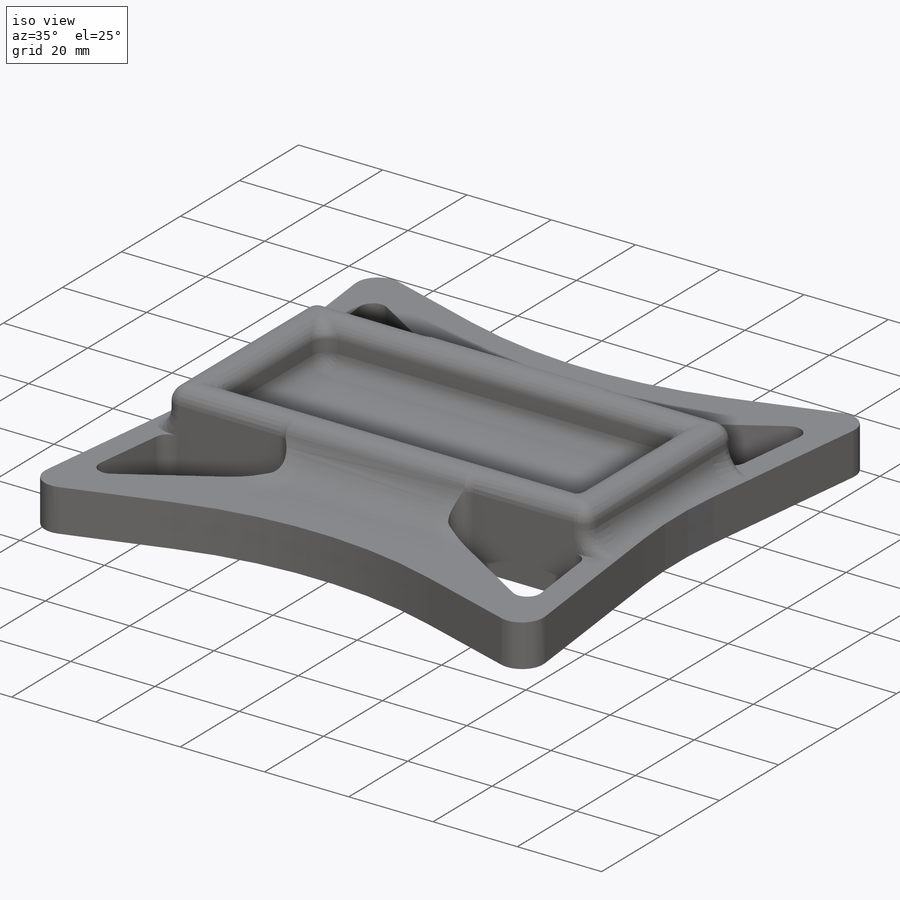
[diagram: iso view]
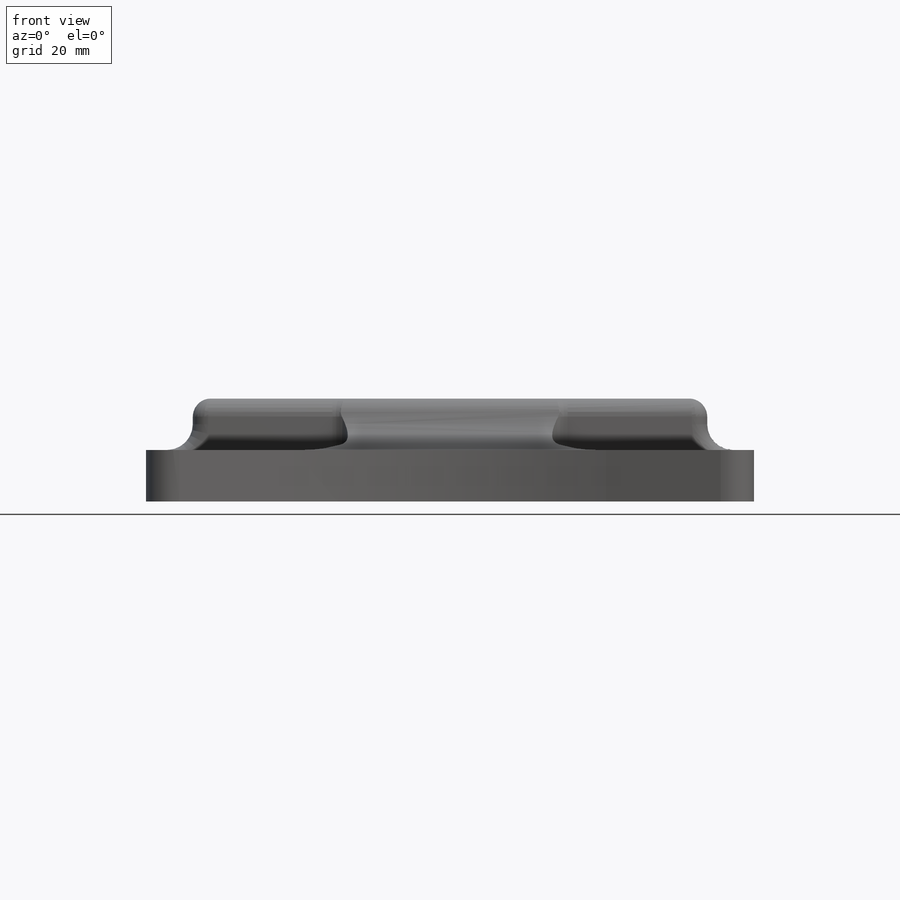
[diagram: front view]
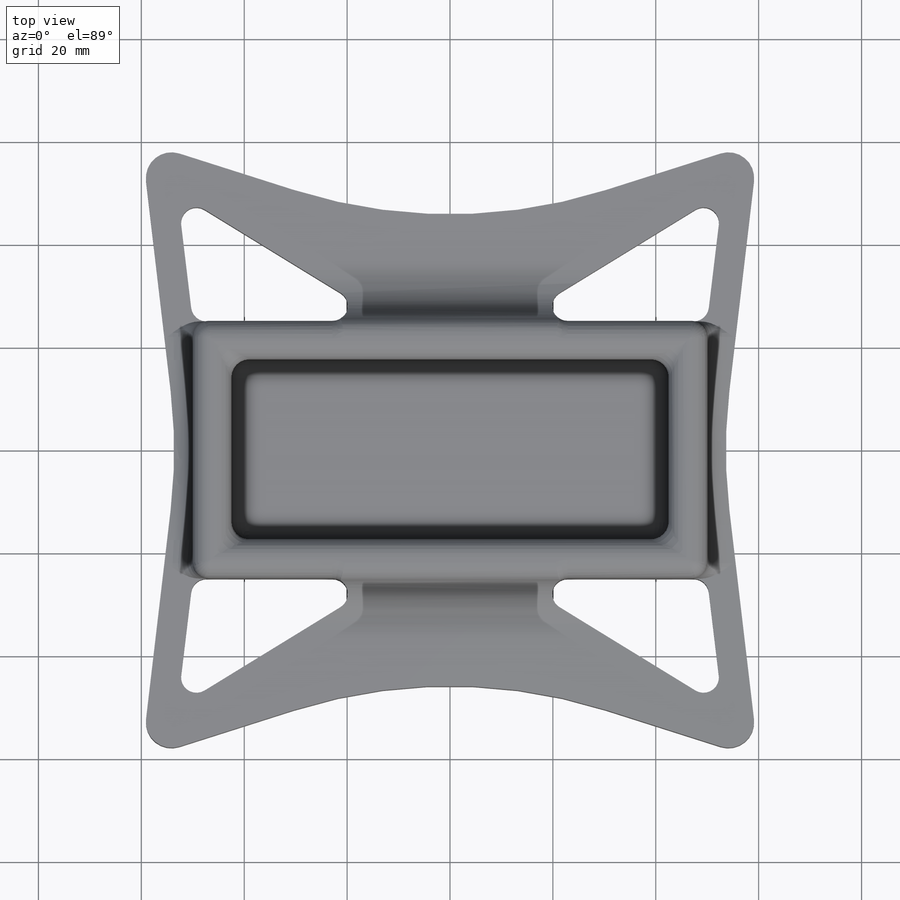
[diagram: top view]
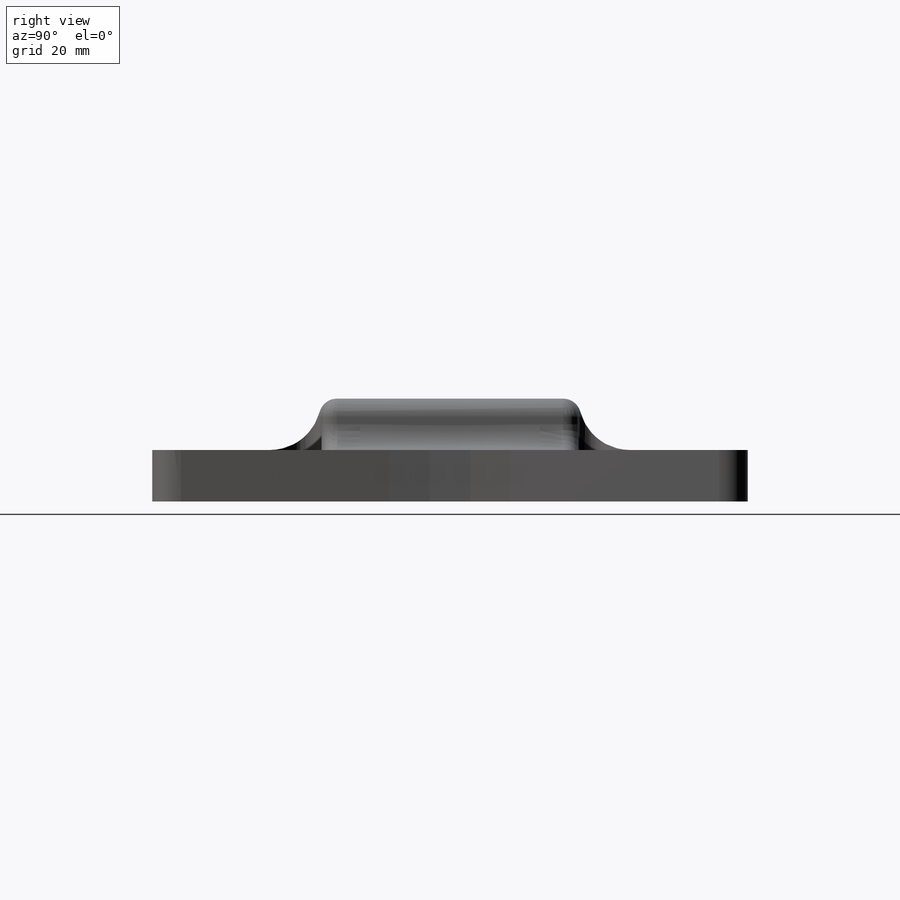
[diagram: right view]
SOLIDWORKS PART (.sldprt)
format: sldprt  version: not decoded by parser v0  size: 544,256 bytes
history: native  units: mm
features: fillet x9, sketch x4, extrude x2, cut_extrude x2, material x1 (+13 scaffold rows collapsed)
feature tree (31):
  scaffold x13  (default folders/planes/origin — collapsed)
  material  "Material <not specified>"
  sketch  "Sketch1"  dims[D1=100.0mm D2=50.0mm]
  extrude  "Boss-Extrude1"  Depth=30mm
  sketch  "Sketch2"  dims[D1=85.0mm D2=35.0mm]
  cut_extrude  "Cut-Extrude1"  Depth=20mm
  sketch  "Sketch3"  dims[c1.D1=100.0mm c1.D2=25.0mm c1.D3=25.0mm c1.D4=25.0mm c1.D5=20.0mm c1.D6=20.0mm c1.D7=20.0mm c1.D8=20.0mm c2.D1=60.0mm c2.D2=60.0mm c2.D3=60.0mm c2.D4=60.0mm c2.D5=60.0mm c2.D6=3.0mm c2.D7=25.0mm c2.D8=3.0mm c2.D9=25.0mm c2.D10=3.0mm c2.D11=25.0mm c2.D12=3.0mm c2.D13=25.0mm c2.D14=7.5mm c2.D15=7.5mm]
  extrude  "Boss-Extrude3"  Depth=10mm
  fillet  "Fillet1"  Radius=3mm
  fillet  "Fillet2"  Radius=10mm
  fillet  "Fillet3"  Radius=100mm
  fillet  "Fillet4"  Radius=5mm
  sketch  "Sketch4"
  cut_extrude  "Cut-Extrude2"  Depth=10mm
  fillet  "Fillet5"  Radius=5mm
  fillet  "Fillet6"  Radius=3mm
  fillet  "Fillet7"  Radius=3.5mm
  fillet  "Fillet8"  Radius=3.5mm
  fillet  "Fillet9"  Radius=3.5mm
decode coverage: 16 of 17 modeling features carry decoded parameters
note: suppression state not decoded; provenance and decode notes live in map.json
